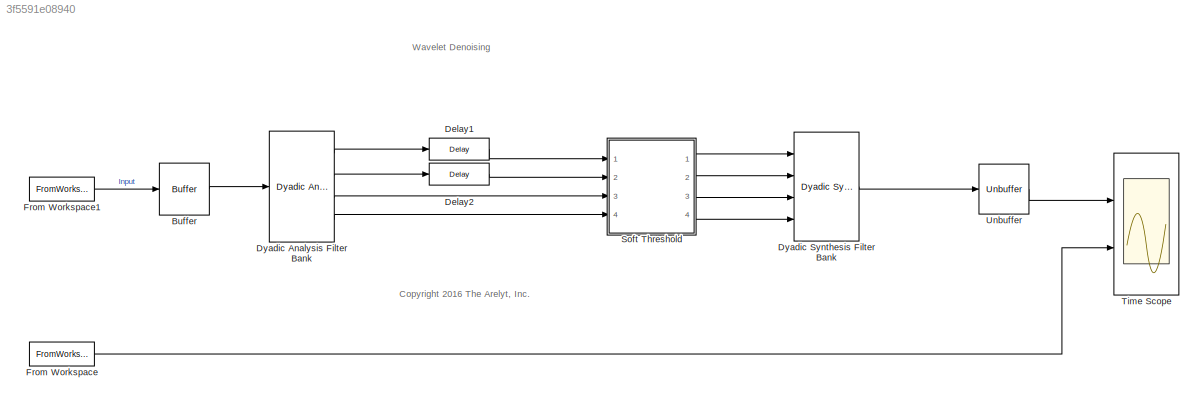
MODEL slx_3f5591e08940
KIND model
CONFIG AbsTol = auto
CONFIG EnableMultiTasking = on
CONFIG FixedStep = 1e-5
CONFIG MaxStep = auto
CONFIG MinStep = auto
CONFIG RelTol = 1e-3
CONFIG SampleTimeConstraint = Unconstrained
CONFIG Solver = FixedStepDiscrete
CONFIG SolverName = FixedStepDiscrete
CONFIG StartTime = 0.0
CONFIG StopTime = 1024
WORKSPACE source: external: MAT-File  (data not in archive)
BLOCK [Buffer] Buffer
  N = 32
  OutputFrames = off
  TreatMby1Signals = One channel
BLOCK [Delay] Delay1
  DelayLength = 33
  InitialCondition = 0
  InputPortMap = u0
  InputProcessing = Columns as channels (frame based)
  Ports = [1, 1]
BLOCK [Delay] Delay2
  DelayLength = 11
  InitialCondition = 0
  InputPortMap = u0
  InputProcessing = Columns as channels (frame based)
  Ports = [1, 1]
BLOCK [Reference] Dyadic Analysis Filter Bank  REF=dspmlti4/Dyadic Analysis
Filter Bank
  Ports = [1, 4]
  SourceBlock = dspmlti4/Dyadic Analysis\nFilter Bank
  SourceType = Dyadic Analysis Filter Bank
BLOCK [Reference] Dyadic Synthesis Filter Bank  REF=dspmlti4/Dyadic Synthesis
Filter Bank
  Ports = [4, 1]
  SourceBlock = dspmlti4/Dyadic Synthesis\nFilter Bank
  SourceType = Dyadic Synthesis Filter Bank
BLOCK [FromWorkspace] From Workspace
  SampleTime = ts
  VariableName = pr
  ZeroCross = on
BLOCK [FromWorkspace] From Workspace1
  SampleTime = ts
  VariableName = sig
  ZeroCross = on
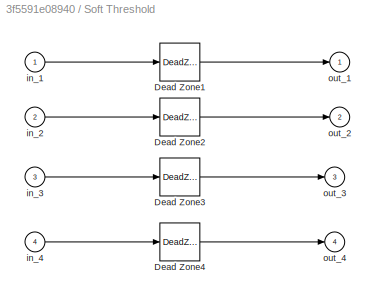
BLOCK [SubSystem] Soft Threshold
  Ports = [4, 4]
  RequestExecContextInheritance = off
  ShowPortLabels = none
  Variant = off
BLOCK [DeadZone] Soft Threshold/Dead Zone1
  LowerValue = -st(1)
  UpperValue = st(1)
  ZeroCross = off
BLOCK [DeadZone] Soft Threshold/Dead Zone2
  LowerValue = -st(2)
  UpperValue = st(2)
  ZeroCross = off
BLOCK [DeadZone] Soft Threshold/Dead Zone3
  LowerValue = -st(3)
  UpperValue = st(3)
  ZeroCross = off
BLOCK [DeadZone] Soft Threshold/Dead Zone4
  LowerValue = -st(4)
  UpperValue = st(4)
  ZeroCross = off
BLOCK [Inport] Soft Threshold/in_1
  IconDisplay = Port number
BLOCK [Inport] Soft Threshold/in_2
  IconDisplay = Port number
  Port = 2
BLOCK [Inport] Soft Threshold/in_3
  IconDisplay = Port number
  Port = 3
BLOCK [Inport] Soft Threshold/in_4
  IconDisplay = Port number
  Port = 4
BLOCK [Outport] Soft Threshold/out_1
  IconDisplay = Port number
BLOCK [Outport] Soft Threshold/out_2
  IconDisplay = Port number
  Port = 2
BLOCK [Outport] Soft Threshold/out_3
  IconDisplay = Port number
  Port = 3
BLOCK [Outport] Soft Threshold/out_4
  IconDisplay = Port number
  Port = 4
BLOCK [Scope] Time Scope
  DefaultConfigurationName = spbscopes.TimeScopeBlockCfg
  NumInputPorts = 2
  Ports = [2]
  ScopeSpecificationString = spbscopes.TimeScopeBlockCfg('CurrentConfiguration', extmgr.ConfigurationSet(extmgr.Configuration('Core','General UI',true),extmgr.Configuration('Core','Source UI',true),extmgr.Configuration('Sources','WiredSimulink',true),extmgr.Configuration('Visuals','Time Domain',true,'DisplayLayoutDimensions',[2 1],'DisplayPropertyDefaults',struct('YLabelReal','Amplitude','AxesColor',[0 0 0],'AxesTickColor',[0...<+2162ch>
  UserDataPersistent = on
BLOCK [Unbuffer] Unbuffer
  Ports = [1, 1]
  SampleBasedProcessing = Same as frame based
ANNOTATION (root): <copyright redacted>
ANNOTATION (root): Wavelet Denoising
LINE Buffer:1 -> Dyadic Analysis Filter Bank:1
LINE Delay1:1 -> Soft Threshold:1
LINE Delay2:1 -> Soft Threshold:2
LINE Dyadic Analysis Filter Bank:1 -> Delay1:1
LINE Dyadic Analysis Filter Bank:2 -> Delay2:1
LINE Dyadic Analysis Filter Bank:3 -> Soft Threshold:3
LINE Dyadic Analysis Filter Bank:4 -> Soft Threshold:4
LINE Dyadic Synthesis Filter Bank:1 -> Unbuffer:1
LINE From Workspace1:1 -> Buffer:1
LINE From Workspace:1 -> Time Scope:2
LINE Soft Threshold/Dead Zone1:1 -> Soft Threshold/out_1:1
LINE Soft Threshold/Dead Zone2:1 -> Soft Threshold/out_2:1
LINE Soft Threshold/Dead Zone3:1 -> Soft Threshold/out_3:1
LINE Soft Threshold/Dead Zone4:1 -> Soft Threshold/out_4:1
LINE Soft Threshold/in_1:1 -> Soft Threshold/Dead Zone1:1
LINE Soft Threshold/in_2:1 -> Soft Threshold/Dead Zone2:1
LINE Soft Threshold/in_3:1 -> Soft Threshold/Dead Zone3:1
LINE Soft Threshold/in_4:1 -> Soft Threshold/Dead Zone4:1
LINE Soft Threshold:1 -> Dyadic Synthesis Filter Bank:1
LINE Soft Threshold:2 -> Dyadic Synthesis Filter Bank:2
LINE Soft Threshold:3 -> Dyadic Synthesis Filter Bank:3
LINE Soft Threshold:4 -> Dyadic Synthesis Filter Bank:4
LINE Unbuffer:1 -> Time Scope:1
